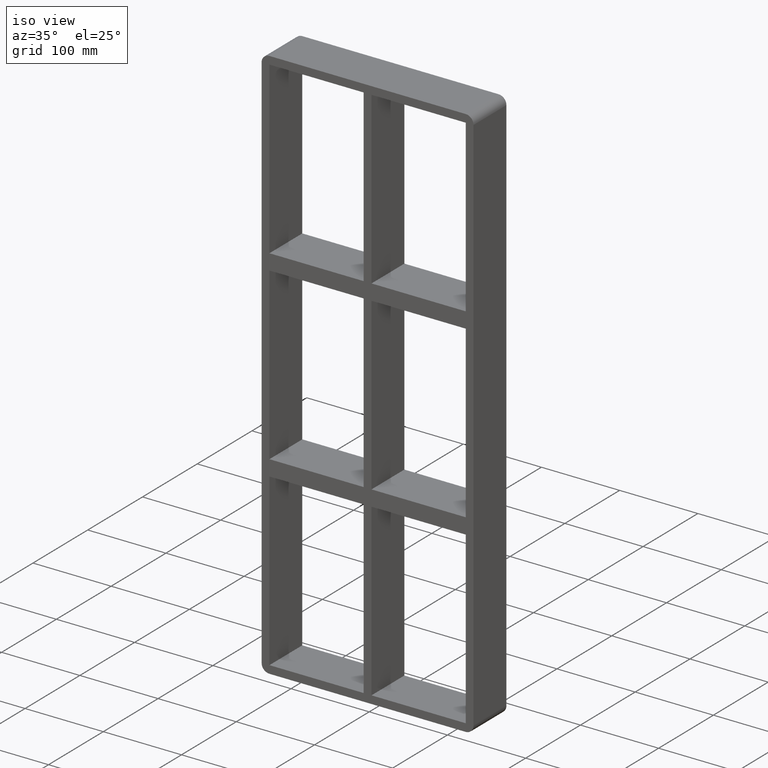
[diagram: clean part render]
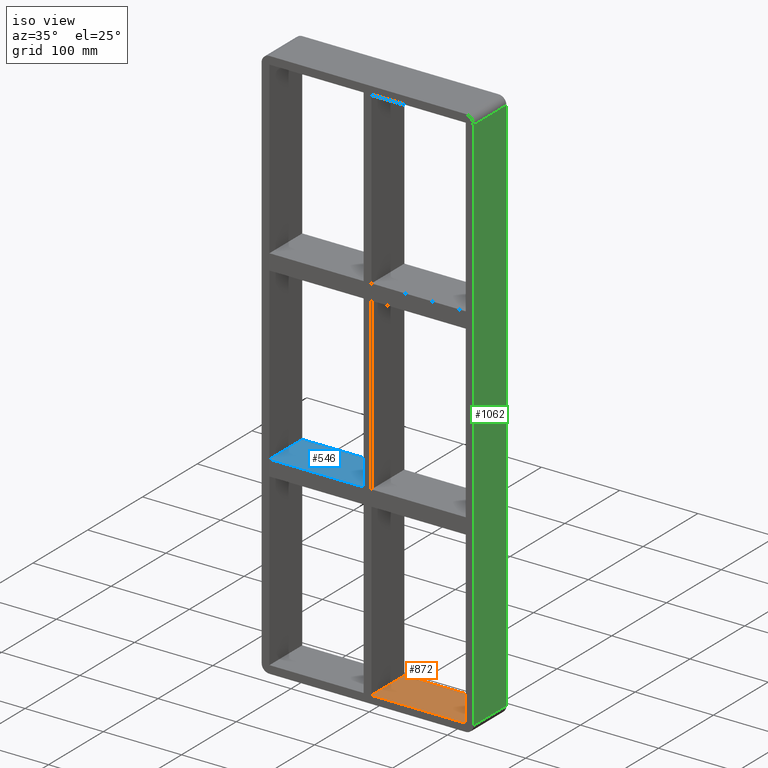
[diagram: same view with three faces highlighted in distinct colors, each labeled with its STEP entity id]
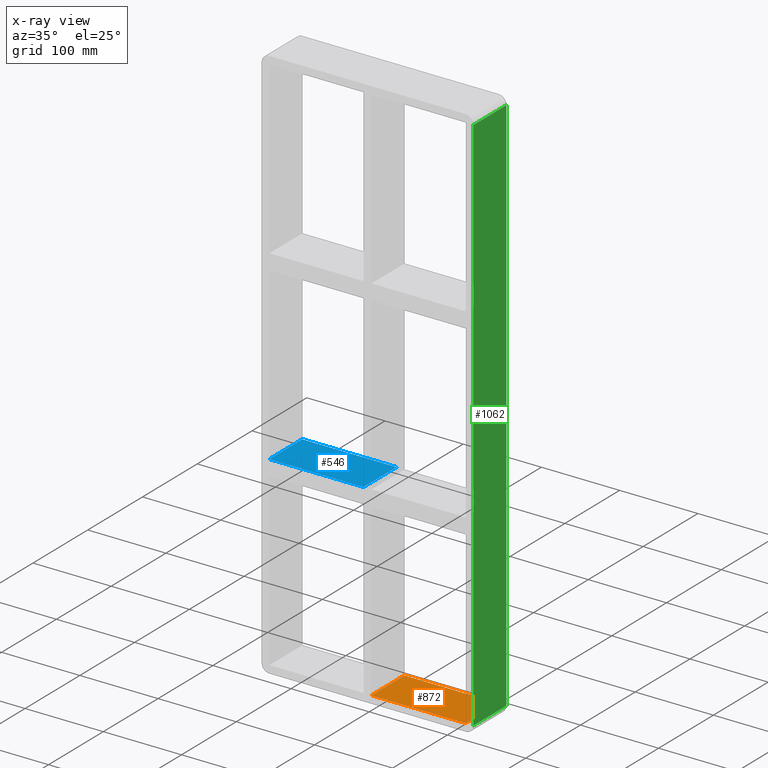
[diagram: x-ray of the same camera — body ghosted, the three highlighted faces saturated]
A machine part, iso view with three faces highlighted in distinct colors.
The next image is the same camera in x-ray (body ghosted, the three faces saturated) — at least one of them is partly hidden behind the body in this view.
Their STEP definitions:

[orange] entity #872 — the highlighted planar face has unit normal (0, 0, -1).
#584=CARTESIAN_POINT('',(125.5,57.0,-347.0));
#585=VERTEX_POINT('',#584);
#592=CARTESIAN_POINT('',(125.5,-3.0,-347.0));
#593=VERTEX_POINT('',#592);
#594=CARTESIAN_POINT('',(125.5,57.0,-347.0));
#595=DIRECTION('',(0.0,-1.0,0.0));
#596=VECTOR('',#595,60.0);
#597=LINE('',#594,#596);
#598=EDGE_CURVE('',#585,#593,#597,.T.);
#749=CARTESIAN_POINT('',(5.0,57.0,-346.99999999998408));
#750=VERTEX_POINT('',#749);
#757=CARTESIAN_POINT('',(5.0,57.0,-347.0));
#758=DIRECTION('',(1.0,0.0,0.0));
#759=VECTOR('',#758,120.5);
#760=LINE('',#757,#759);
#761=EDGE_CURVE('',#750,#585,#760,.T.);
#814=CARTESIAN_POINT('',(5.0,-3.0,-346.9999999999842));
#815=VERTEX_POINT('',#814);
#822=CARTESIAN_POINT('',(5.0,57.000000000000007,-347.0));
#823=DIRECTION('',(0.0,-1.0,0.0));
#824=VECTOR('',#823,60.000000000000007);
#825=LINE('',#822,#824);
#826=EDGE_CURVE('',#750,#815,#825,.T.);
#856=CARTESIAN_POINT('',(125.5,0.0,-347.0));
#857=DIRECTION('',(0.0,0.0,-1.0));
#858=DIRECTION('',(-1.0,0.0,0.0));
#859=AXIS2_PLACEMENT_3D('',#856,#857,#858);
#860=PLANE('',#859);
#861=ORIENTED_EDGE('',*,*,#826,.T.);
#862=CARTESIAN_POINT('',(125.5,-3.0,-347.0));
#863=DIRECTION('',(-1.0,0.0,0.0));
#864=VECTOR('',#863,120.5);
#865=LINE('',#862,#864);
#866=EDGE_CURVE('',#593,#815,#865,.T.);
#867=ORIENTED_EDGE('',*,*,#866,.F.);
#868=ORIENTED_EDGE('',*,*,#598,.F.);
#869=ORIENTED_EDGE('',*,*,#761,.F.);
#870=EDGE_LOOP('',(#861,#867,#868,#869));
#871=FACE_OUTER_BOUND('',#870,.T.);
#872=ADVANCED_FACE('',(#871),#860,.F.);

[blue] entity #546 — the highlighted planar face has unit normal (0, 0, 1).
#234=CARTESIAN_POINT('',(-125.49999999999969,-3.0,-109.00000000000006));
#235=VERTEX_POINT('',#234);
#242=CARTESIAN_POINT('',(-125.49999999999969,57.0,-109.00000000000006));
#243=VERTEX_POINT('',#242);
#244=CARTESIAN_POINT('',(-125.5,-3.0,-109.00000000000006));
#245=DIRECTION('',(0.0,1.0,0.0));
#246=VECTOR('',#245,60.000000000000007);
#247=LINE('',#244,#246);
#248=EDGE_CURVE('',#235,#243,#247,.T.);
#358=CARTESIAN_POINT('',(-5.000000000001297,57.0,-109.00000000000006));
#359=VERTEX_POINT('',#358);
#366=CARTESIAN_POINT('',(-5.000000000001297,-3.0,-109.00000000000006));
#367=VERTEX_POINT('',#366);
#368=CARTESIAN_POINT('',(-5.000000000001306,57.0,-109.00000000000006));
#369=DIRECTION('',(0.0,-1.0,0.0));
#370=VECTOR('',#369,60.0);
#371=LINE('',#368,#370);
#372=EDGE_CURVE('',#359,#367,#371,.T.);
#525=CARTESIAN_POINT('',(-125.49999999999969,-3.0,-109.00000000000006));
#526=DIRECTION('',(0.0,0.0,1.0));
#527=DIRECTION('',(1.0,0.0,0.0));
#528=AXIS2_PLACEMENT_3D('',#525,#526,#527);
#529=PLANE('',#528);
#530=ORIENTED_EDGE('',*,*,#372,.F.);
#531=CARTESIAN_POINT('',(-125.49999999999969,57.0,-109.00000000000006));
#532=DIRECTION('',(1.0,0.0,0.0));
#533=VECTOR('',#532,120.49999999999839);
#534=LINE('',#531,#533);
#535=EDGE_CURVE('',#243,#359,#534,.T.);
#536=ORIENTED_EDGE('',*,*,#535,.F.);
#537=ORIENTED_EDGE('',*,*,#248,.F.);
#538=CARTESIAN_POINT('',(-125.49999999999969,-3.0,-109.00000000000006));
#539=DIRECTION('',(1.0,0.0,0.0));
#540=VECTOR('',#539,120.49999999999839);
#541=LINE('',#538,#540);
#542=EDGE_CURVE('',#235,#367,#541,.T.);
#543=ORIENTED_EDGE('',*,*,#542,.T.);
#544=EDGE_LOOP('',(#530,#536,#537,#543));
#545=FACE_OUTER_BOUND('',#544,.T.);
#546=ADVANCED_FACE('',(#545),#529,.T.);

[green] entity #1062 — the highlighted planar face has unit normal (1, 0, 0).
#616=CARTESIAN_POINT('',(135.5,57.0,-347.0));
#617=VERTEX_POINT('',#616);
#667=CARTESIAN_POINT('',(135.5,57.0,347.0));
#668=VERTEX_POINT('',#667);
#676=CARTESIAN_POINT('',(135.5,57.0,347.0));
#677=DIRECTION('',(0.0,0.0,-1.0));
#678=VECTOR('',#677,694.0);
#679=LINE('',#676,#678);
#680=EDGE_CURVE('',#668,#617,#679,.T.);
#913=CARTESIAN_POINT('',(135.5,-3.0,-347.0));
#914=VERTEX_POINT('',#913);
#915=CARTESIAN_POINT('',(135.5,57.0,-347.0));
#916=DIRECTION('',(0.0,-1.0,0.0));
#917=VECTOR('',#916,60.0);
#918=LINE('',#915,#917);
#919=EDGE_CURVE('',#617,#914,#918,.T.);
#945=CARTESIAN_POINT('',(135.5,-3.0,347.0));
#946=VERTEX_POINT('',#945);
#947=CARTESIAN_POINT('',(135.5,-3.0,-347.0));
#948=DIRECTION('',(0.0,0.0,1.0));
#949=VECTOR('',#948,694.0);
#950=LINE('',#947,#949);
#951=EDGE_CURVE('',#914,#946,#950,.T.);
#1046=CARTESIAN_POINT('',(135.5,0.0,357.0));
#1047=DIRECTION('',(1.0,0.0,0.0));
#1048=DIRECTION('',(0.0,0.0,-1.0));
#1049=AXIS2_PLACEMENT_3D('',#1046,#1047,#1048);
#1050=PLANE('',#1049);
#1051=ORIENTED_EDGE('',*,*,#919,.F.);
#1052=ORIENTED_EDGE('',*,*,#680,.F.);
#1053=CARTESIAN_POINT('',(135.5,-3.0,347.0));
#1054=DIRECTION('',(0.0,1.0,0.0));
#1055=VECTOR('',#1054,60.0);
#1056=LINE('',#1053,#1055);
#1057=EDGE_CURVE('',#946,#668,#1056,.T.);
#1058=ORIENTED_EDGE('',*,*,#1057,.F.);
#1059=ORIENTED_EDGE('',*,*,#951,.F.);
#1060=EDGE_LOOP('',(#1051,#1052,#1058,#1059));
#1061=FACE_OUTER_BOUND('',#1060,.T.);
#1062=ADVANCED_FACE('',(#1061),#1050,.T.);